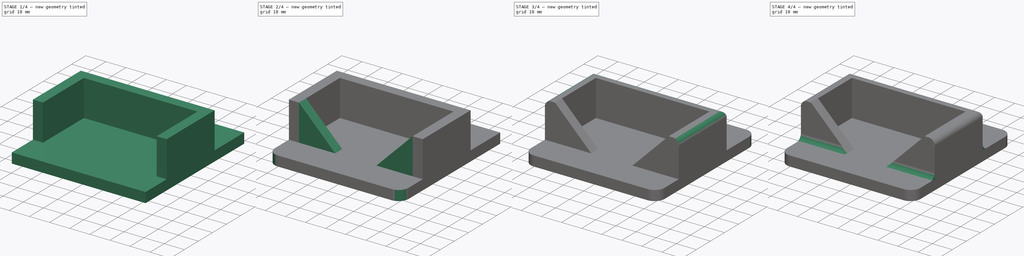
[diagram: build sequence overview — one tinted view per stage of 4, left to right]
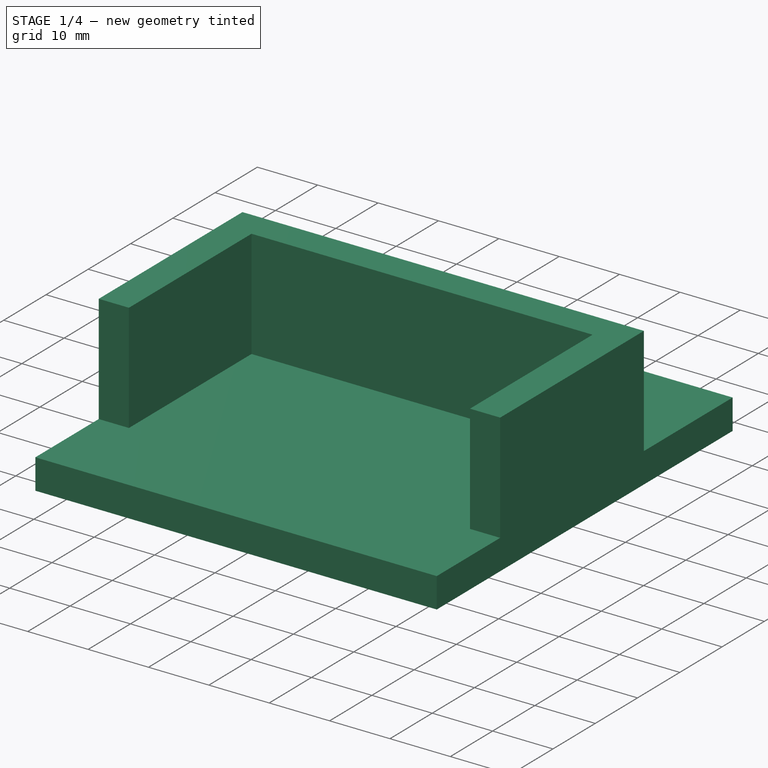
[diagram: stage 1 of 4 — iso view after this stage's code; geometry added in this stage tinted green]
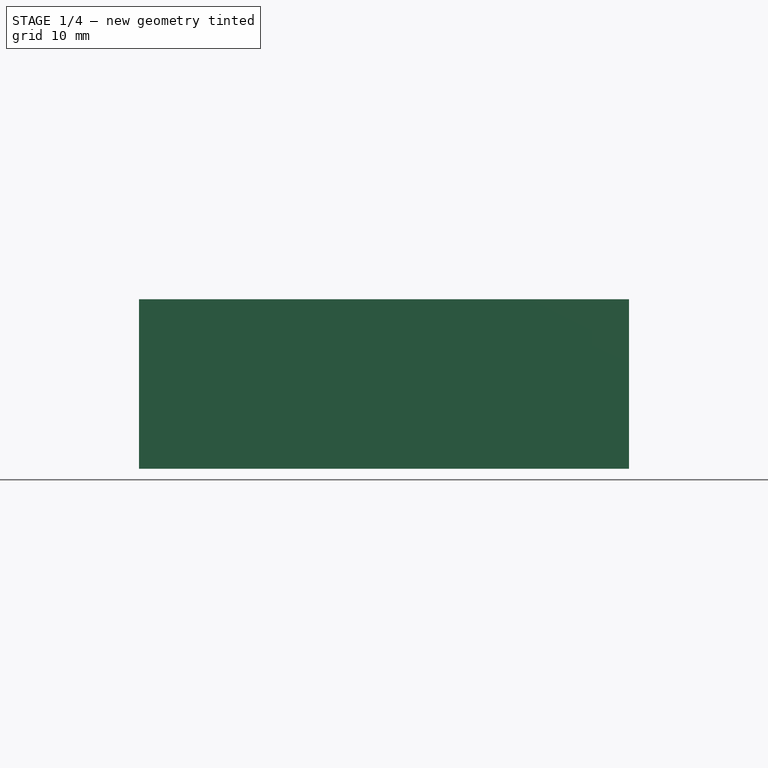
[diagram: stage 1 of 4 — front view after this stage's code; geometry added in this stage tinted green]
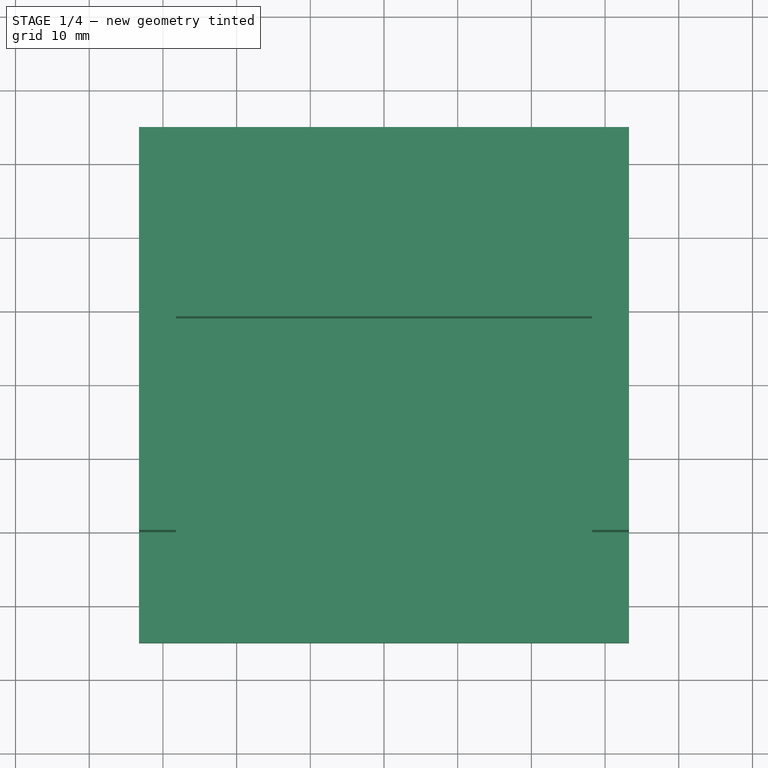
[diagram: stage 1 of 4 — top view after this stage's code; geometry added in this stage tinted green]
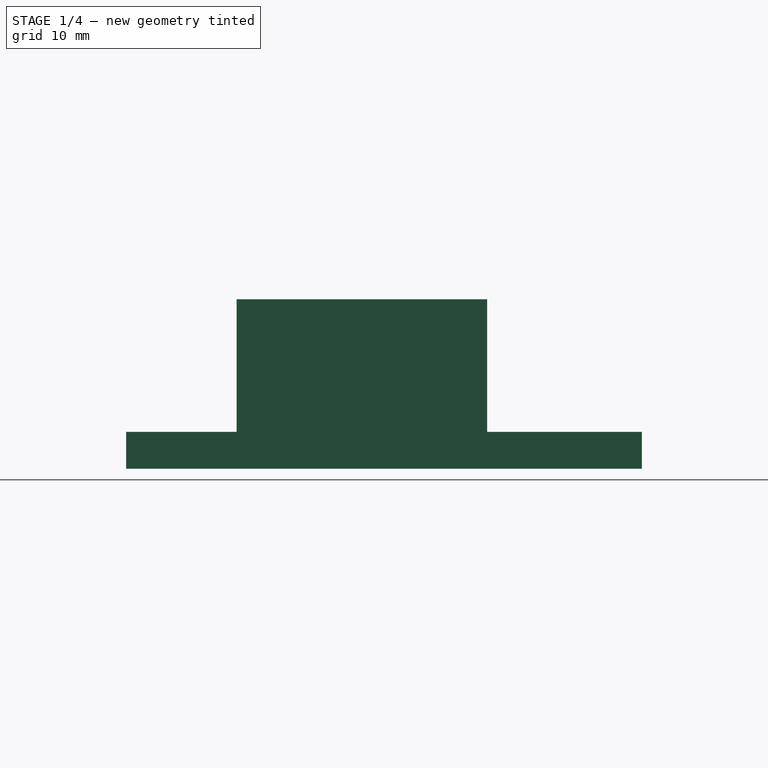
[diagram: stage 1 of 4 — right view after this stage's code; geometry added in this stage tinted green]
FCSTD DOCUMENT  (FreeCAD 0.18.4R)
Label: watch_basement
License: All rights reserved
LicenseURL: http://en.wikipedia.org/wiki/All_rights_reserved
objects: PartDesign::Fillet×7, Sketcher::SketchObject×3, PartDesign::Pad×3, App::Part×1, PartDesign::Body×1
note: 17 computed .brp shape members not serialized (recipe doc carries the construction recipe); baked Part::Feature solids carry a one-line shape summary decoded from their .brp

FEATURE [App::Part] Part
  Origin = -> Origin
FEATURE [Sketcher::SketchObject] Sketch
  MapMode = 5
  Support = -> [XY_Plane001]
  sketch-geometry (4):
    g0: LineSegment StartX=-33.25 StartY=35 StartZ=0 EndX=33.25 EndY=35 EndZ=0
    g1: LineSegment StartX=33.25 StartY=35 StartZ=0 EndX=33.25 EndY=-35 EndZ=0
    g2: LineSegment StartX=33.25 StartY=-35 StartZ=0 EndX=-33.25 EndY=-35 EndZ=0
    g3: LineSegment StartX=-33.25 StartY=-35 StartZ=0 EndX=-33.25 EndY=35 EndZ=0
  constraints (10):
    c: Coincident(g0,g1)
    c: Coincident(g1,g2)
    c: Coincident(g2,g3)
    c: Coincident(g3,g0)
    c: Horizontal(g0)
    c: Vertical(g1)
    c: DistanceX(g2,g1) = 66.5
    c: DistanceY(g1,g0) = 70
    c: Symmetric(g1,g2,g-2)
    c: Symmetric(g0,g2,g-1)
FEATURE [PartDesign::Pad] Pad
  Length = 5
  Length2 = 100
  Profile = -> Sketch
  Type = 0
FEATURE [Sketcher::SketchObject] Sketch001
  ExternalGeometry = -> [Pad]
  MapMode = 5
  Placement = pos=(0,0,5) rot=(0,0,1;0rad)
  Support = -> [Pad]
  sketch-geometry (8):
    g0: LineSegment StartX=-28.25 StartY=-20 StartZ=0 EndX=-28.25 EndY=9 EndZ=0
    g1: LineSegment StartX=-28.25 StartY=9 StartZ=0 EndX=28.25 EndY=9 EndZ=0
    g2: LineSegment StartX=28.25 StartY=9 StartZ=0 EndX=28.25 EndY=-20 EndZ=0
    g3: LineSegment StartX=28.25 StartY=-20 StartZ=0 EndX=33.25 EndY=-20 EndZ=0
    g4: LineSegment StartX=33.25 StartY=-20 StartZ=0 EndX=33.25 EndY=14 EndZ=0
    g5: LineSegment StartX=33.25 StartY=14 StartZ=0 EndX=-33.25 EndY=14 EndZ=0
    g6: LineSegment StartX=-33.25 StartY=14 StartZ=0 EndX=-33.25 EndY=-20 EndZ=0
    g7: LineSegment StartX=-33.25 StartY=-20 StartZ=0 EndX=-28.25 EndY=-20 EndZ=0
  constraints (24):
    c: Coincident(g0,g1)
    c: Coincident(g1,g2)
    c: Coincident(g2,g3)
    c: Coincident(g3,g4)
    c: Coincident(g4,g5)
    c: Coincident(g5,g6)
    c: Coincident(g6,g7)
    c: Coincident(g7,g0)
    c: Horizontal(g1)
    c: Horizontal(g5)
    c: Vertical(g0)
    c: Vertical(g6)
    c: Vertical(g2)
    c: Vertical(g4)
    c: Horizontal(g7)
    c: Horizontal(g3)
    c: PointOnObject(g4,g-3)
    c: PointOnObject(g5,g-4)
    c: DistanceX(g6,g0) = 5
    c: DistanceX(g2,g3) = 5
    c: DistanceY(g1,g4) = 5
    c: DistanceY(g6,g5) = 34
    c: DistanceY(g3,g4) = 34
    c: DistanceY(g-4,g6) = 15
FEATURE [PartDesign::Pad] Pad001
  BaseFeature = -> Pad
  Length = 18
  Length2 = 100
  Profile = -> Sketch001
  Type = 0
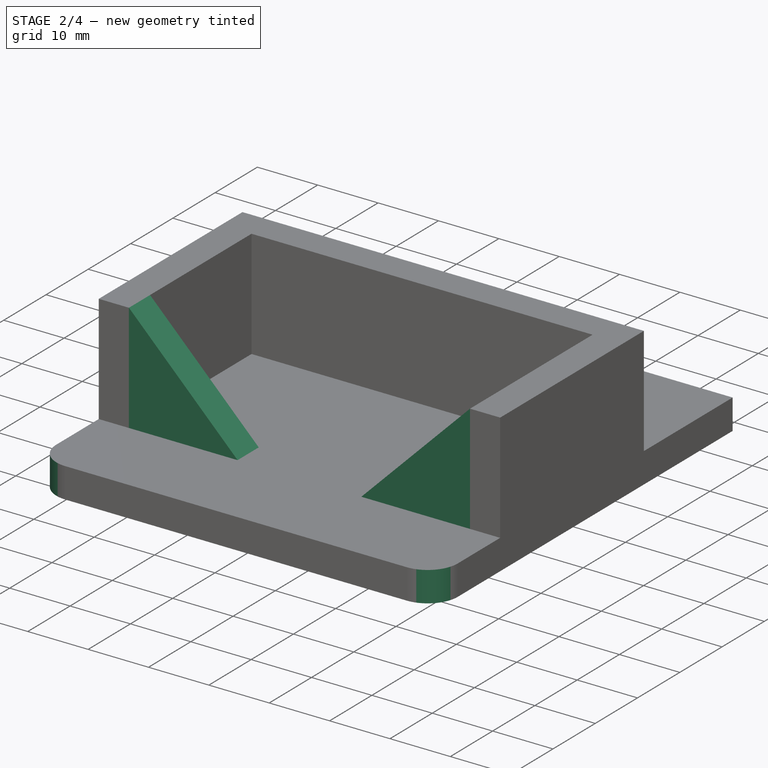
[diagram: stage 2 of 4 — iso view after this stage's code; geometry added in this stage tinted green]
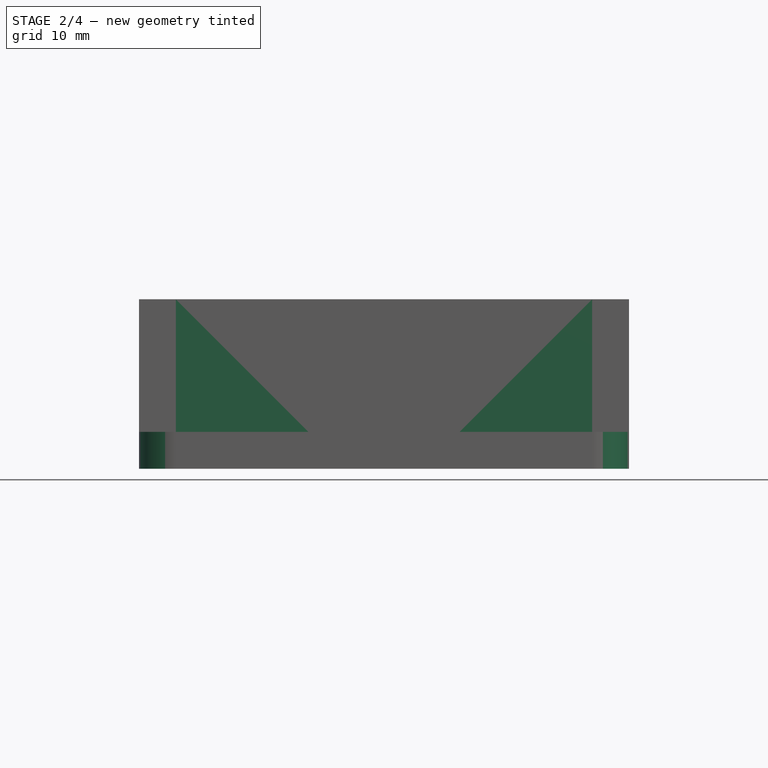
[diagram: stage 2 of 4 — front view after this stage's code; geometry added in this stage tinted green]
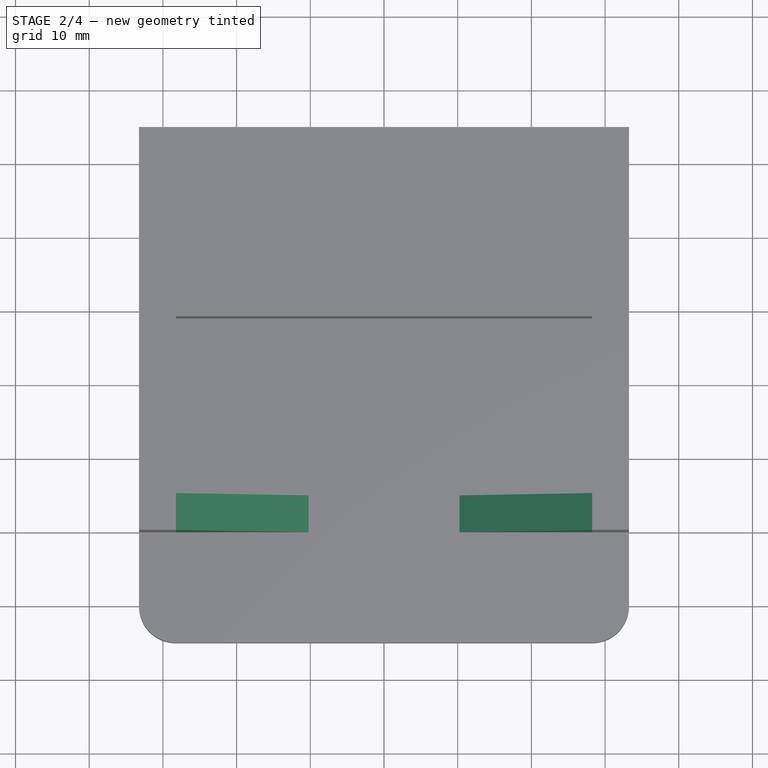
[diagram: stage 2 of 4 — top view after this stage's code; geometry added in this stage tinted green]
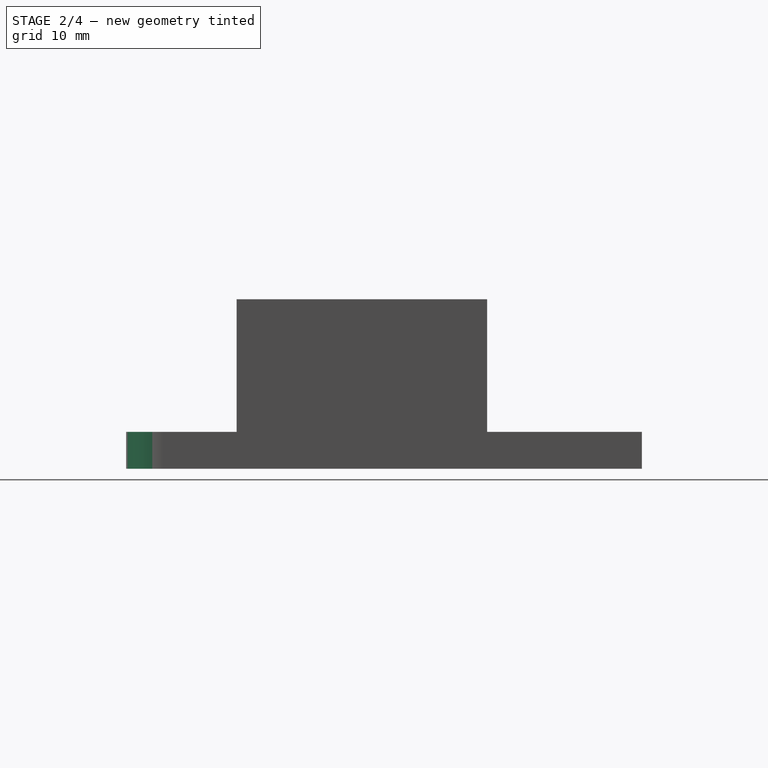
[diagram: stage 2 of 4 — right view after this stage's code; geometry added in this stage tinted green]
FEATURE [Sketcher::SketchObject] Sketch002
  ExternalGeometry = -> [Pad001]
  MapMode = 5
  Placement = pos=(0,-20,0) rot=(1,0,0;1.5708rad)
  Support = -> [Pad001]
  sketch-geometry (6):
    g0: LineSegment StartX=-28.25 StartY=23 StartZ=0 EndX=-10.25 EndY=5 EndZ=0
    g1: LineSegment StartX=-10.25 StartY=5 StartZ=0 EndX=-28.25 EndY=5 EndZ=0
    g2: LineSegment StartX=-28.25 StartY=5 StartZ=0 EndX=-28.25 EndY=23 EndZ=0
    g3: LineSegment StartX=10.25 StartY=5 StartZ=0 EndX=28.25 EndY=23 EndZ=0
    g4: LineSegment StartX=28.25 StartY=23 StartZ=0 EndX=28.25 EndY=5 EndZ=0
    g5: LineSegment StartX=28.25 StartY=5 StartZ=0 EndX=10.25 EndY=5 EndZ=0
  constraints (15):
    c: Coincident(g0,g1)
    c: Coincident(g1,g2)
    c: Coincident(g2,g0)
    c: Vertical(g2)
    c: PointOnObject(g0,g-5)
    c: Horizontal(g1)
    c: DistanceX(g1,g0) = 18
    c: Coincident(g0,g-3)
    c: Coincident(g3,g4)
    c: Coincident(g4,g5)
    c: Coincident(g5,g3)
    c: Coincident(g3,g-4)
    c: PointOnObject(g3,g-5)
    c: Coincident(g4,g-4)
    c: DistanceX(g3,g4) = 18
FEATURE [PartDesign::Pad] Pad002
  BaseFeature = -> Pad001
  Length = 5
  Length2 = 100
  Profile = -> Sketch002
  Reversed = true
  Type = 0
FEATURE [PartDesign::Fillet] Fillet
  Base = -> Pad002 [Edge10]
  BaseFeature = -> Pad002
  Radius = 5
FEATURE [PartDesign::Fillet] Fillet001
  Base = -> Fillet [Edge33]
  BaseFeature = -> Fillet
  Radius = 5
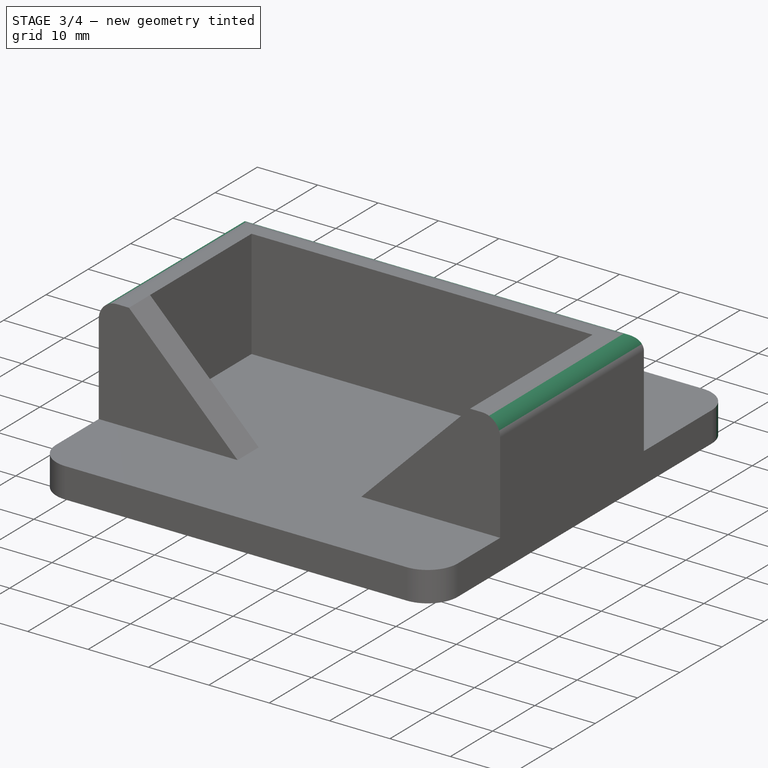
[diagram: stage 3 of 4 — iso view after this stage's code; geometry added in this stage tinted green]
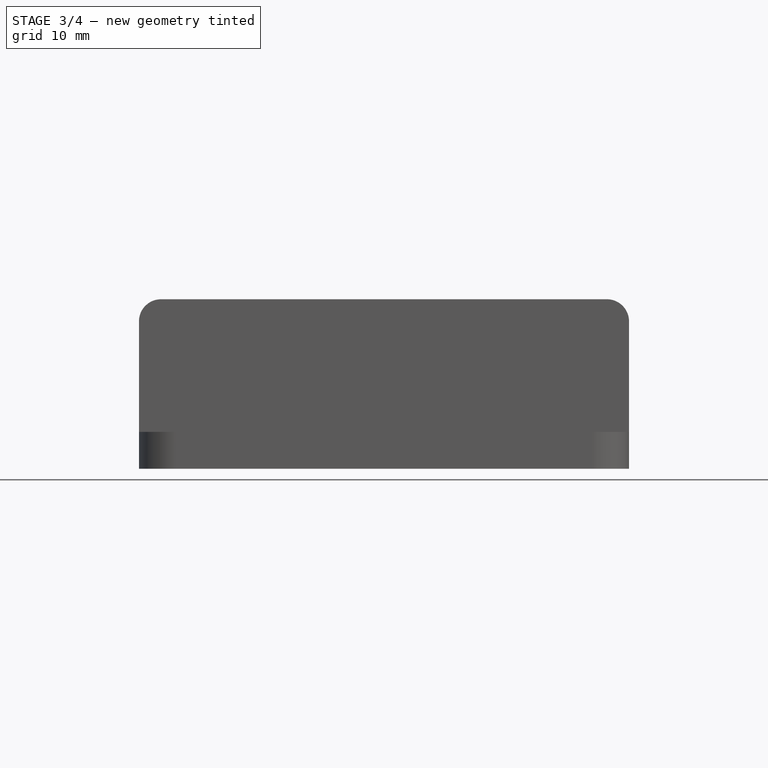
[diagram: stage 3 of 4 — front view after this stage's code; geometry added in this stage tinted green]
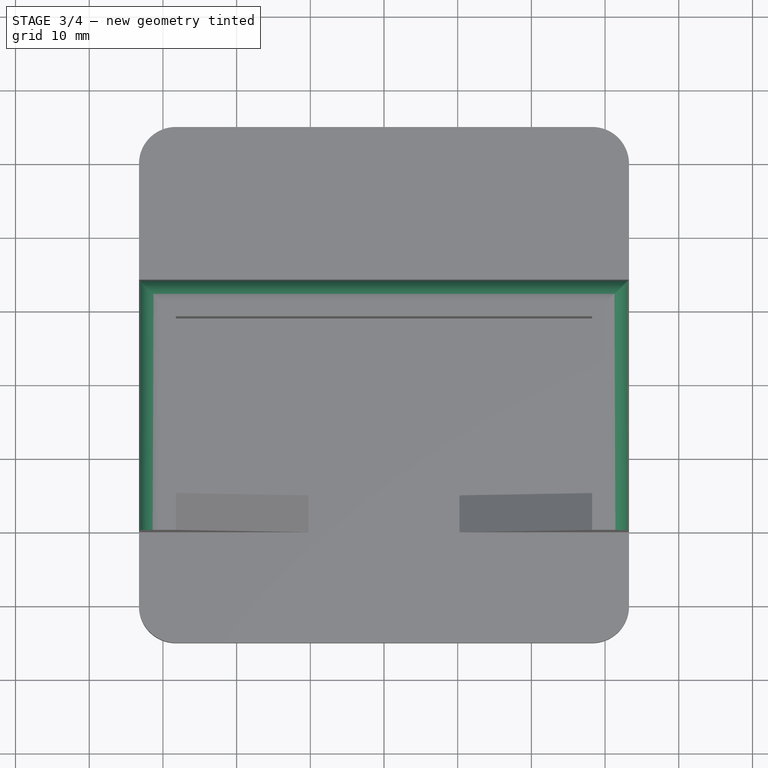
[diagram: stage 3 of 4 — top view after this stage's code; geometry added in this stage tinted green]
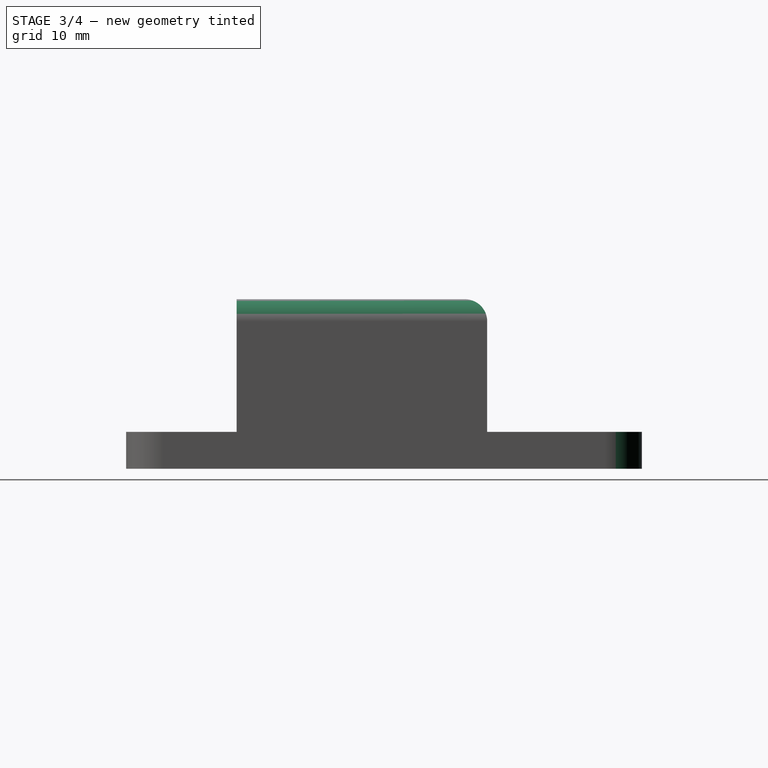
[diagram: stage 3 of 4 — right view after this stage's code; geometry added in this stage tinted green]
FEATURE [PartDesign::Fillet] Fillet002
  Base = -> Fillet001 [Edge18]
  BaseFeature = -> Fillet001
  Radius = 5
FEATURE [PartDesign::Fillet] Fillet003
  Base = -> Fillet002 [Edge17]
  BaseFeature = -> Fillet002
  Radius = 5
FEATURE [PartDesign::Fillet] Fillet004
  Base = -> Fillet003 [Edge46,Edge47,Edge43]
  BaseFeature = -> Fillet003
  Radius = 3
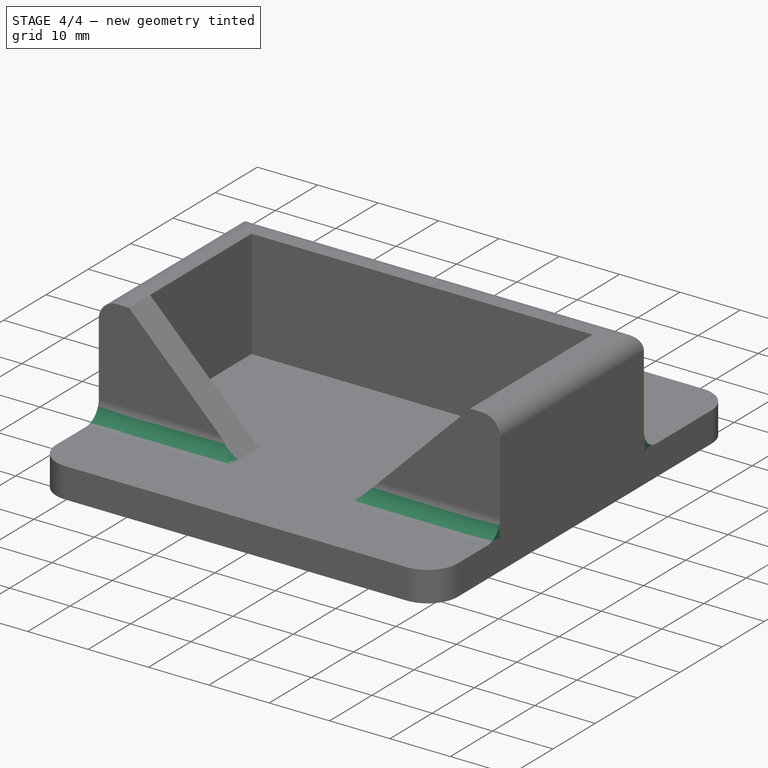
[diagram: stage 4 of 4 — iso view after this stage's code; geometry added in this stage tinted green]
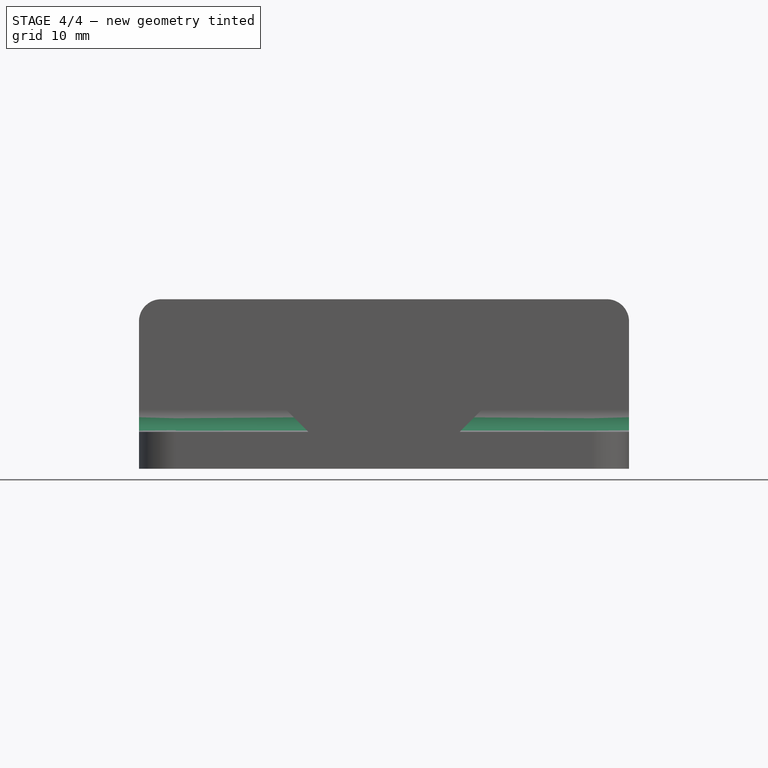
[diagram: stage 4 of 4 — front view after this stage's code; geometry added in this stage tinted green]
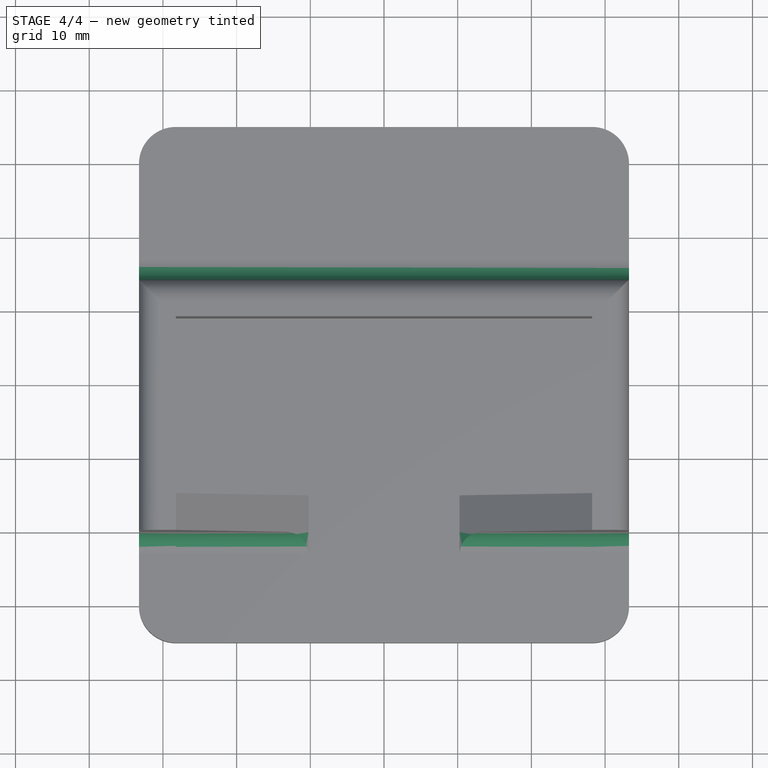
[diagram: stage 4 of 4 — top view after this stage's code; geometry added in this stage tinted green]
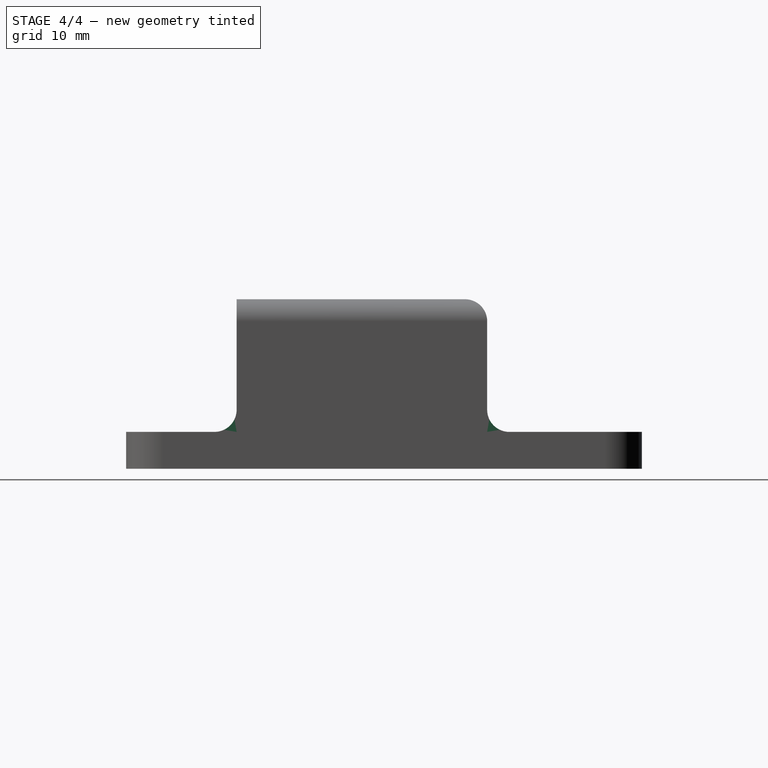
[diagram: stage 4 of 4 — right view after this stage's code; geometry added in this stage tinted green]
FEATURE [PartDesign::Fillet] Fillet005
  Base = -> Fillet004 [Edge7]
  BaseFeature = -> Fillet004
  Radius = 3
FEATURE [PartDesign::Fillet] Fillet006
  Base = -> Fillet005 [Edge52,Edge53,Edge20,Edge54]
  BaseFeature = -> Fillet005
  Radius = 3
FEATURE [PartDesign::Body] Body
  Group = -> [Sketch,Pad,Sketch001,Pad001,Sketch002,Pad002,Fillet,Fillet001,Fillet002,Fillet003,Fillet004,Fillet005,Fillet006]
  Origin = -> Origin001
  Tip = -> Fillet006
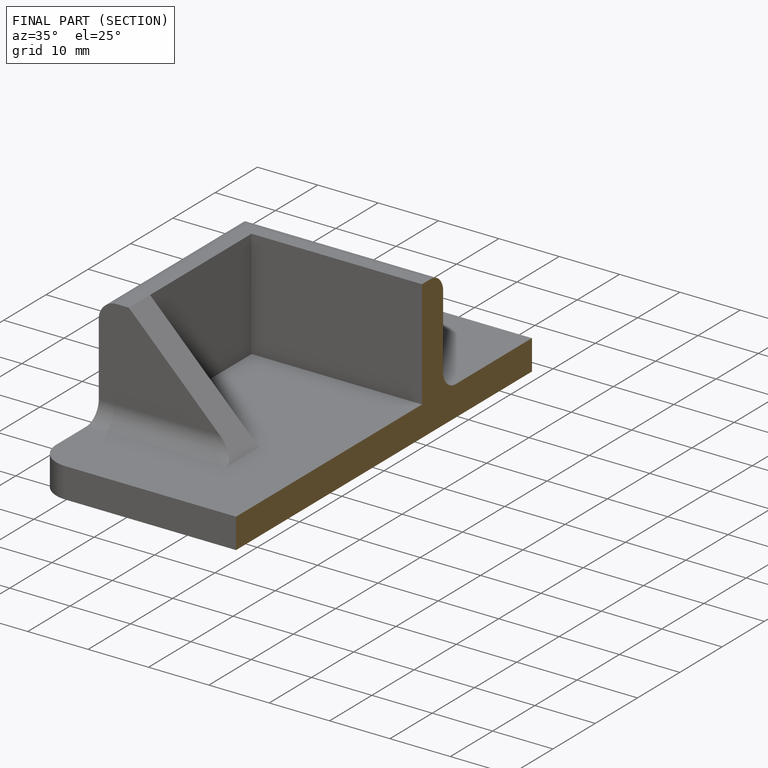
[diagram: finished part — half-section view (interior)]
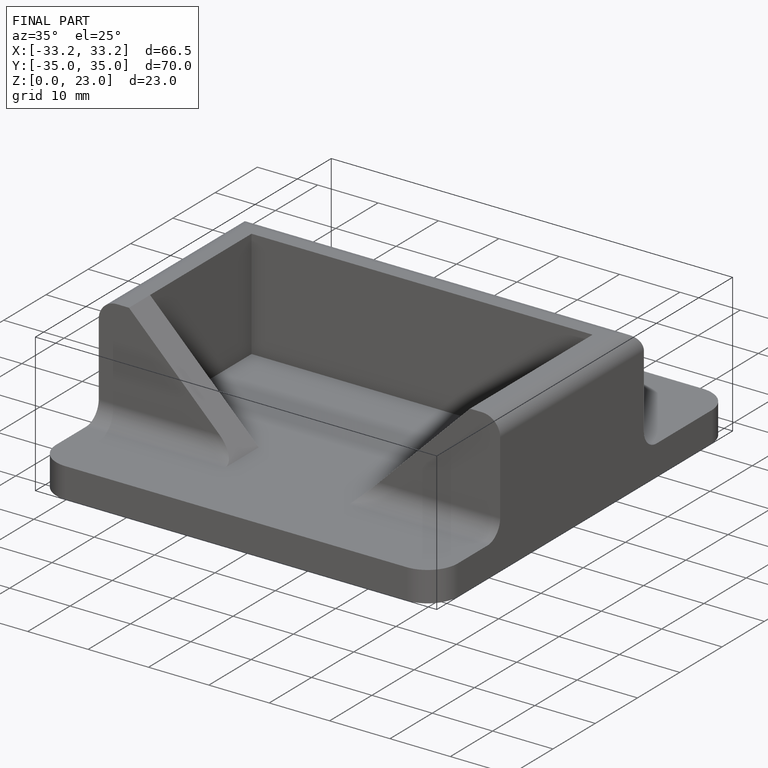
[diagram: finished part — iso view with bounding-box wireframe]
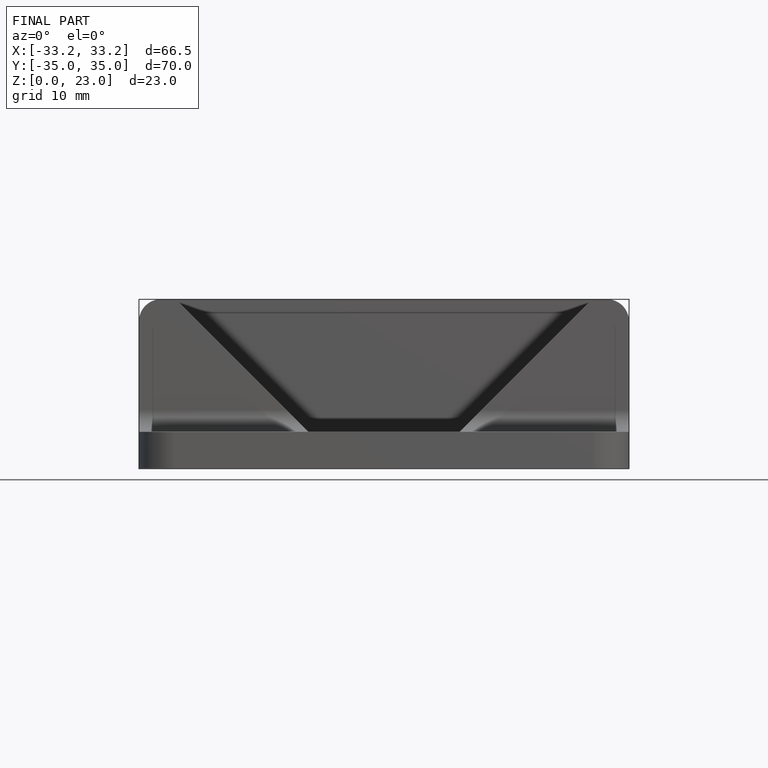
[diagram: finished part — front view with bounding-box wireframe]
